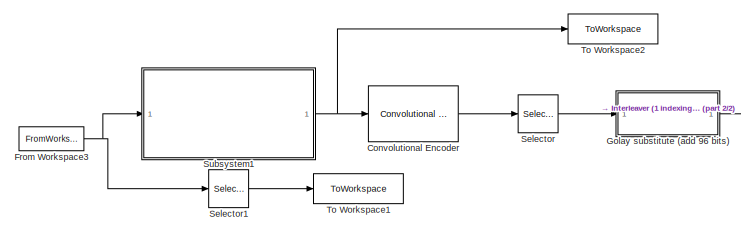
[diagram: root canvas - part 1/2, left side, full height]
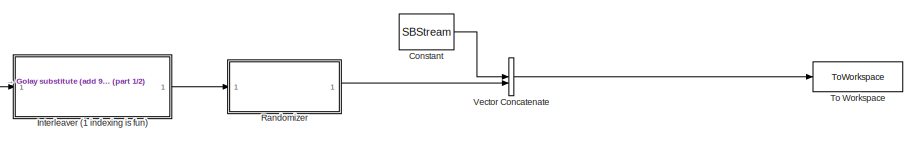
[diagram: root canvas - part 2/2, middle right region]
MODEL slx_ae3251279583
KIND model
CONFIG AbsTol = auto
CONFIG EnableMultiTasking = off
CONFIG FixedStep = 1
CONFIG MaxStep = auto
CONFIG MinStep = auto
CONFIG RelTol = 1e-3
CONFIG SampleTimeConstraint = Unconstrained
CONFIG SolverName = FixedStepAuto
CONFIG StartTime = 0.0
CONFIG StopTime = 0
BLOCK [Constant] Constant
  Value = SBStream
BLOCK [Reference] Convolutional Encoder  REF=commcnvcod2/Convolutional
Encoder
  LibrarySourceBlock = commhdlcnvcod/Convolutional\nEncoder
  SourceBlock = commcnvcod2/Convolutional\nEncoder
  SourceType = Convolutional Encoder
BLOCK [FromWorkspace] From Workspace3
  Interpolate = off
  OutputAfterFinalValue = Setting to zero
  VariableName = DFM
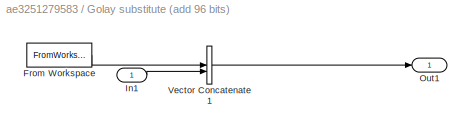
BLOCK [SubSystem] Golay substitute (add 96 bits)
BLOCK [FromWorkspace] Golay substitute (add 96 bits)/From Workspace
  VariableName = LSFC
BLOCK [Inport] Golay substitute (add 96 bits)/In1
BLOCK [Outport] Golay substitute (add 96 bits)/Out1
BLOCK [Concatenate] Golay substitute (add 96 bits)/Vector Concatenate1
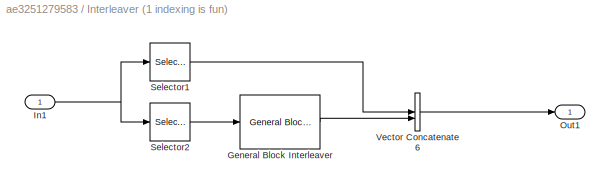
BLOCK [SubSystem] Interleaver (1 indexing is fun)
BLOCK [Reference] Interleaver (1 indexing is fun)/General Block Interleaver  REF=commblkintrlv2/General Block
Interleaver
  SourceBlock = commblkintrlv2/General Block\nInterleaver
  SourceType = General Block Interleaver
  StatePerturbationForJacobian = 1.0e-05
BLOCK [Inport] Interleaver (1 indexing is fun)/In1
BLOCK [Outport] Interleaver (1 indexing is fun)/Out1
BLOCK [Selector] Interleaver (1 indexing is fun)/Selector1
  IndexOptions = Index vector (dialog)
  Indices = [1]
  OutputSizes = 1
BLOCK [Selector] Interleaver (1 indexing is fun)/Selector2
  IndexOptions = Index vector (dialog)
  Indices = [2:368]
  OutputSizes = 1
BLOCK [Concatenate] Interleaver (1 indexing is fun)/Vector Concatenate6
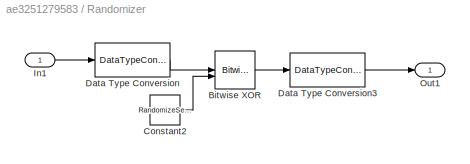
BLOCK [SubSystem] Randomizer
BLOCK [Reference] Randomizer/Bitwise XOR  REF=simulink/Logic and Bit
Operations/Bitwise
Operator
  SourceBlock = simulink/Logic and Bit\nOperations/Bitwise\nOperator
  SourceType = Bitwise Operator
BLOCK [Constant] Randomizer/Constant2
  Value = RandomizeSequence
BLOCK [DataTypeConversion] Randomizer/Data Type Conversion
  OutDataTypeStr = boolean
  RndMeth = Floor
  SaturateOnIntegerOverflow = off
BLOCK [DataTypeConversion] Randomizer/Data Type Conversion3
  OutDataTypeStr = double
  RndMeth = Floor
  SaturateOnIntegerOverflow = off
BLOCK [Inport] Randomizer/In1
BLOCK [Outport] Randomizer/Out1
BLOCK [Selector] Selector
  IndexOptions = Index vector (dialog)
  Indices = [1:272]
  OutputSizes = 1
BLOCK [Selector] Selector1
  IndexOptions = Index vector (dialog)
  Indices = [129:144]
  OutputSizes = 1
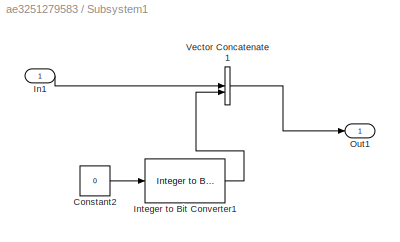
BLOCK [SubSystem] Subsystem1
BLOCK [Constant] Subsystem1/Constant2
  Value = 0
BLOCK [Inport] Subsystem1/In1
BLOCK [Reference] Subsystem1/Integer to Bit Converter1  REF=simulink/Logic and Bit
Operations/Integer to Bit
Converter
  SourceBlock = simulink/Logic and Bit\nOperations/Integer to Bit\nConverter
  SourceType = Integer to Bit Converter
BLOCK [Outport] Subsystem1/Out1
BLOCK [Concatenate] Subsystem1/Vector Concatenate1
BLOCK [ToWorkspace] To Workspace
  FixptAsFi = on
  MaxDataPoints = inf
  SampleTime = -1
  Save2DSignal = 2-D array (concatenate along first dimension)
  VariableName = stream
BLOCK [ToWorkspace] To Workspace1
  FixptAsFi = on
  MaxDataPoints = inf
  SampleTime = -1
  Save2DSignal = 2-D array (concatenate along first dimension)
  VariableName = FrameNumber
BLOCK [ToWorkspace] To Workspace2
  FixptAsFi = on
  MaxDataPoints = inf
  SampleTime = -1
  Save2DSignal = 2-D array (concatenate along first dimension)
  VariableName = simout2
BLOCK [Concatenate] Vector Concatenate
LINE Constant:1 -> Vector Concatenate:1
LINE Convolutional Encoder:1 -> Selector:1
NET From Workspace3:1 -> Selector1:1, Subsystem1:1
LINE Golay substitute (add 96 bits)/From Workspace:1 -> Golay substitute (add 96 bits)/Vector Concatenate1:1
LINE Golay substitute (add 96 bits)/In1:1 -> Golay substitute (add 96 bits)/Vector Concatenate1:2
LINE Golay substitute (add 96 bits)/Vector Concatenate1:1 -> Golay substitute (add 96 bits)/Out1:1
LINE Golay substitute (add 96 bits):1 -> Interleaver (1 indexing is fun):1
LINE Interleaver (1 indexing is fun)/General Block Interleaver:1 -> Interleaver (1 indexing is fun)/Vector Concatenate6:2
NET Interleaver (1 indexing is fun)/In1:1 -> Interleaver (1 indexing is fun)/Selector1:1, Interleaver (1 indexing is fun)/Selector2:1
LINE Interleaver (1 indexing is fun)/Selector1:1 -> Interleaver (1 indexing is fun)/Vector Concatenate6:1
LINE Interleaver (1 indexing is fun)/Selector2:1 -> Interleaver (1 indexing is fun)/General Block Interleaver:1
LINE Interleaver (1 indexing is fun)/Vector Concatenate6:1 -> Interleaver (1 indexing is fun)/Out1:1
LINE Interleaver (1 indexing is fun):1 -> Randomizer:1
LINE Randomizer/Bitwise XOR:1 -> Randomizer/Data Type Conversion3:1
LINE Randomizer/Constant2:1 -> Randomizer/Bitwise XOR:2
LINE Randomizer/Data Type Conversion3:1 -> Randomizer/Out1:1
LINE Randomizer/Data Type Conversion:1 -> Randomizer/Bitwise XOR:1
LINE Randomizer/In1:1 -> Randomizer/Data Type Conversion:1
LINE Randomizer:1 -> Vector Concatenate:2
LINE Selector1:1 -> To Workspace1:1
LINE Selector:1 -> Golay substitute (add 96 bits):1
LINE Subsystem1/Constant2:1 -> Subsystem1/Integer to Bit Converter1:1
LINE Subsystem1/In1:1 -> Subsystem1/Vector Concatenate1:1
LINE Subsystem1/Integer to Bit Converter1:1 -> Subsystem1/Vector Concatenate1:2
LINE Subsystem1/Vector Concatenate1:1 -> Subsystem1/Out1:1
NET Subsystem1:1 -> Convolutional Encoder:1, To Workspace2:1
LINE Vector Concatenate:1 -> To Workspace:1
note: NET lines group one-source signal fan-out (src -> all destinations, sorted); 1:1 wires keep LINE
